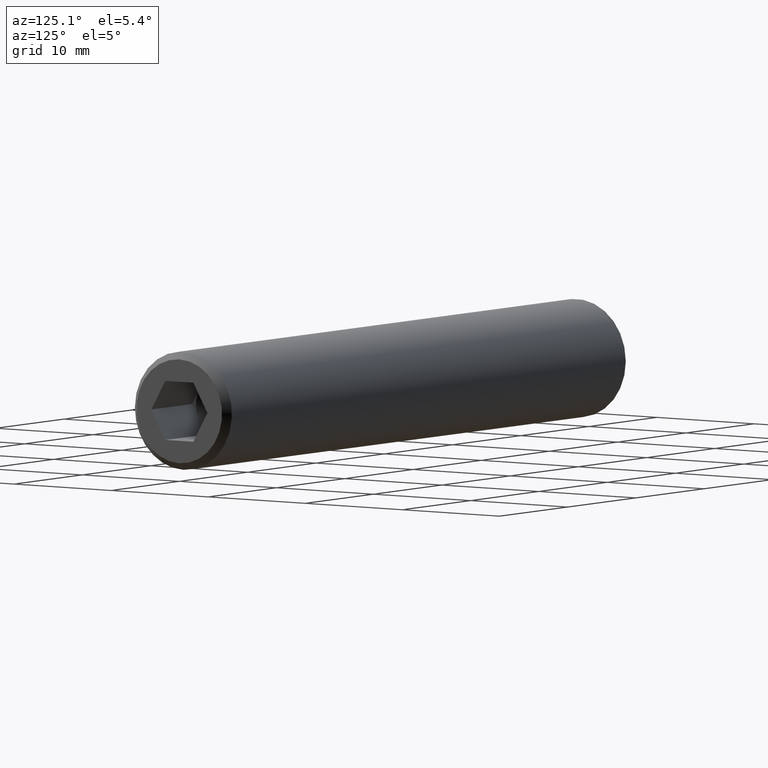
[diagram: clean part render]
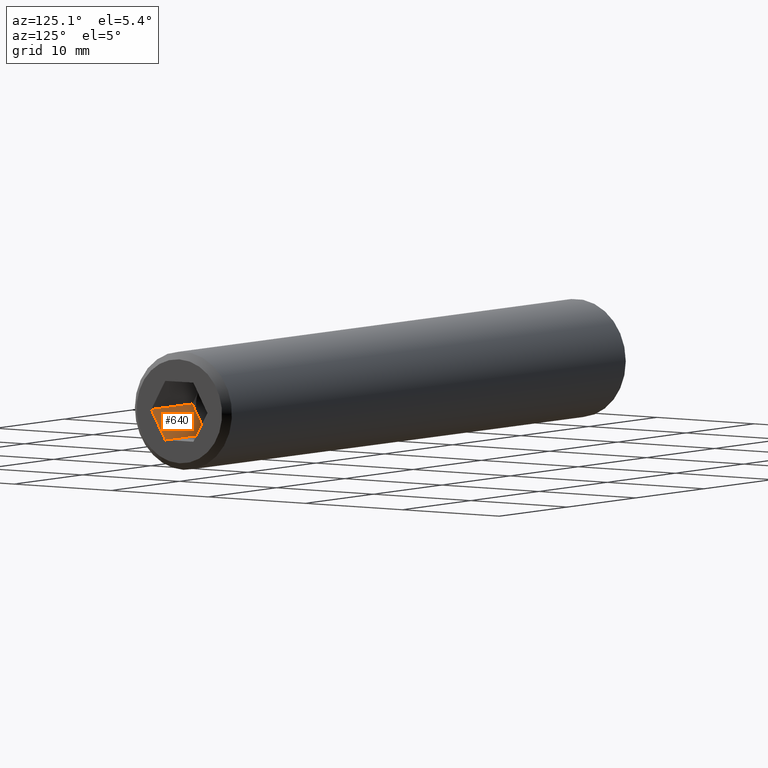
[diagram: same view with one face highlighted and labeled with its STEP entity id]
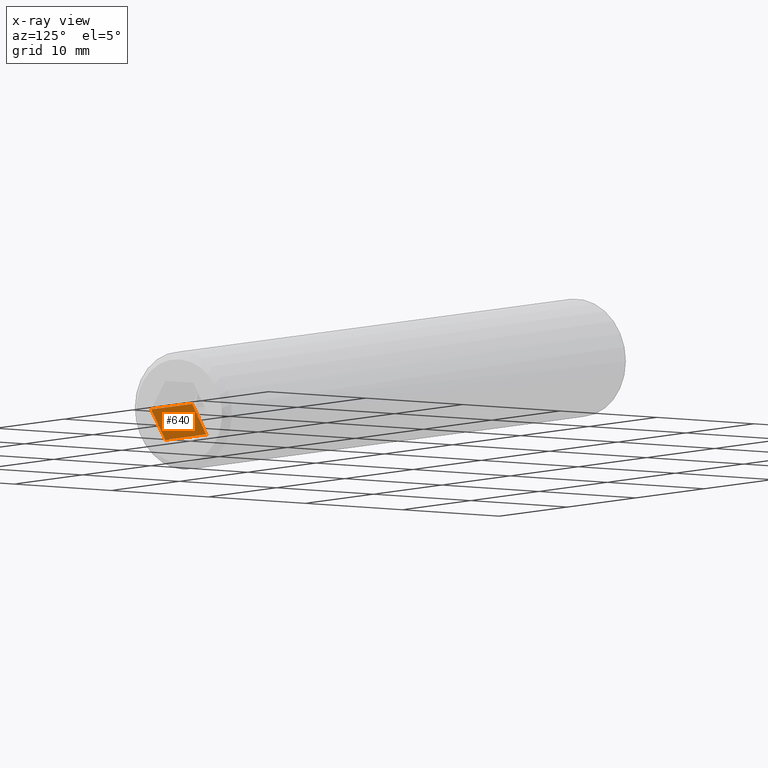
[diagram: x-ray of the same camera — body ghosted, the highlighted face saturated]
A machine part, auxiliary view. The second image highlights one B-rep face of the part: STEP entity #640.
The next image is the same camera in x-ray: the body ghosted, the highlighted face saturated — about 0% of this face is hidden behind the body in this view.
In plain terms, the highlighted planar face has unit normal (0, -0.866, -0.5).
Its self-contained STEP definition (entity closure, byte-faithful):
#640 = ADVANCED_FACE ( 'NONE', ( #17641 ), #11944, .F. ) ;
#687 = LINE ( 'NONE', #7949, #10030 ) ;
#1018 = VERTEX_POINT ( 'NONE', #4505 ) ;
#1984 = CARTESIAN_POINT ( 'NONE',  ( 54.00000000000000000, -2.165063509461099900, -1.250000000000004000 ) ) ;
#2378 = CARTESIAN_POINT ( 'NONE',  ( 54.00000000000000000, -2.886751345948133500, -3.721487768284372000E-016 ) ) ;
#2541 = LINE ( 'NONE', #18002, #13224 ) ;
#2658 = EDGE_LOOP ( 'NONE', ( #4553, #17226, #17926, #11887, #17088 ) ) ;
#3804 = VERTEX_POINT ( 'NONE', #7063 ) ;
#4505 = CARTESIAN_POINT ( 'NONE',  ( 60.00000000000000000, -1.443375672974070800, -2.499999999999999100 ) ) ;
#4553 = ORIENTED_EDGE ( 'NONE', *, *, #13001, .T. ) ;
#4733 = DIRECTION ( 'NONE',  ( 0.0000000000000000000, 0.4999999999999997200, -0.8660254037844388200 ) ) ;
#5804 = EDGE_CURVE ( 'NONE', #6549, #14284, #6970, .T. ) ;
#6129 = DIRECTION ( 'NONE',  ( 3.061515884555941900E-017, -0.8660254037844388200, -0.4999999999999997200 ) ) ;
#6231 = EDGE_CURVE ( 'NONE', #3804, #6549, #12003, .T. ) ;
#6415 = AXIS2_PLACEMENT_3D ( 'NONE', #10395, #6129, #4733 ) ;
#6549 = VERTEX_POINT ( 'NONE', #1984 ) ;
#6970 = LINE ( 'NONE', #9738, #13299 ) ;
#7063 = CARTESIAN_POINT ( 'NONE',  ( 54.00000000000000000, -2.886751345948133500, -3.721487768284372000E-016 ) ) ;
#7921 = VERTEX_POINT ( 'NONE', #11692 ) ;
#7949 = CARTESIAN_POINT ( 'NONE',  ( 54.00000000000000000, -1.443375672974070800, -2.499999999999999600 ) ) ;
#7974 = EDGE_CURVE ( 'NONE', #14284, #1018, #687, .T. ) ;
#8719 = CARTESIAN_POINT ( 'NONE',  ( 54.00000000000000000, -1.443375672974070800, -2.499999999999999600 ) ) ;
#8835 = VECTOR ( 'NONE', #9130, 1000.000000000000000 ) ;
#9130 = DIRECTION ( 'NONE',  ( 1.000000000000000000, -0.0000000000000000000, 6.123031769111886300E-017 ) ) ;
#9411 = DIRECTION ( 'NONE',  ( 1.000000000000000000, -0.0000000000000000000, 6.123031769111886300E-017 ) ) ;
#9651 = DIRECTION ( 'NONE',  ( 0.0000000000000000000, 0.4999999999999997200, -0.8660254037844388200 ) ) ;
#9738 = CARTESIAN_POINT ( 'NONE',  ( 54.00000000000000000, -2.886751345948133500, -3.721487768284372000E-016 ) ) ;
#10030 = VECTOR ( 'NONE', #9411, 1000.000000000000000 ) ;
#10395 = CARTESIAN_POINT ( 'NONE',  ( 54.00000000000000000, -2.886751345948133500, -3.721487768284372000E-016 ) ) ;
#11692 = CARTESIAN_POINT ( 'NONE',  ( 60.00000000000000000, -2.886751345948133500, -2.168404344971008900E-016 ) ) ;
#11887 = ORIENTED_EDGE ( 'NONE', *, *, #6231, .F. ) ;
#11944 = PLANE ( 'NONE',  #6415 ) ;
#12003 = LINE ( 'NONE', #12133, #17882 ) ;
#12133 = CARTESIAN_POINT ( 'NONE',  ( 54.00000000000000000, -2.886751345948133500, -3.721487768284372000E-016 ) ) ;
#13001 = EDGE_CURVE ( 'NONE', #7921, #1018, #2541, .T. ) ;
#13224 = VECTOR ( 'NONE', #9651, 1000.000000000000000 ) ;
#13283 = EDGE_CURVE ( 'NONE', #3804, #7921, #17789, .T. ) ;
#13299 = VECTOR ( 'NONE', #15218, 1000.000000000000000 ) ;
#13567 = DIRECTION ( 'NONE',  ( 0.0000000000000000000, 0.4999999999999997200, -0.8660254037844388200 ) ) ;
#14284 = VERTEX_POINT ( 'NONE', #8719 ) ;
#15218 = DIRECTION ( 'NONE',  ( 0.0000000000000000000, 0.4999999999999997200, -0.8660254037844388200 ) ) ;
#17088 = ORIENTED_EDGE ( 'NONE', *, *, #13283, .T. ) ;
#17226 = ORIENTED_EDGE ( 'NONE', *, *, #7974, .F. ) ;
#17641 = FACE_OUTER_BOUND ( 'NONE', #2658, .T. ) ;
#17789 = LINE ( 'NONE', #2378, #8835 ) ;
#17882 = VECTOR ( 'NONE', #13567, 1000.000000000000000 ) ;
#17926 = ORIENTED_EDGE ( 'NONE', *, *, #5804, .F. ) ;
#18002 = CARTESIAN_POINT ( 'NONE',  ( 60.00000000000000000, -2.886751345948133500, -4.766870681724039000E-018 ) ) ;